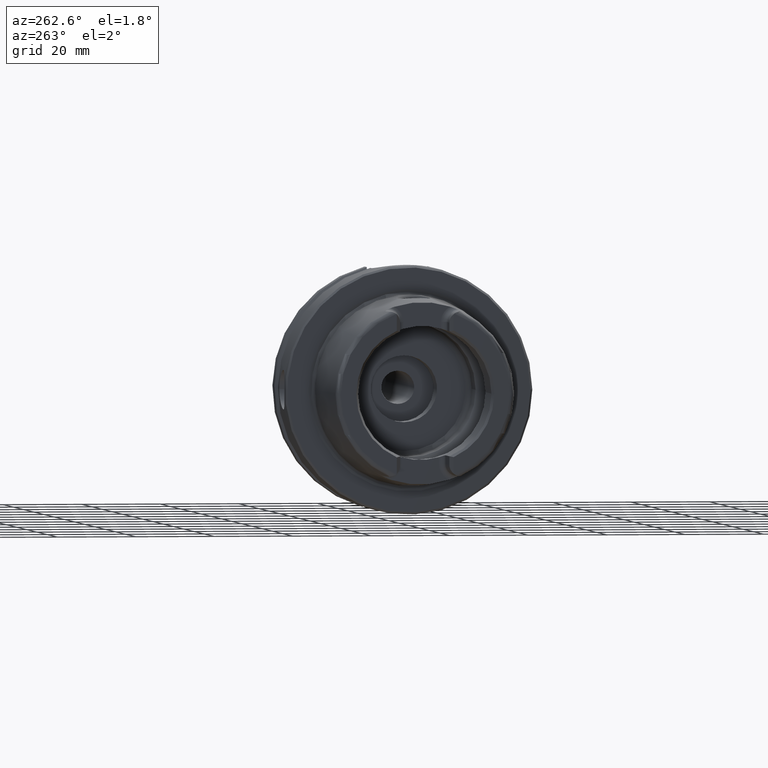
[diagram: clean part render]
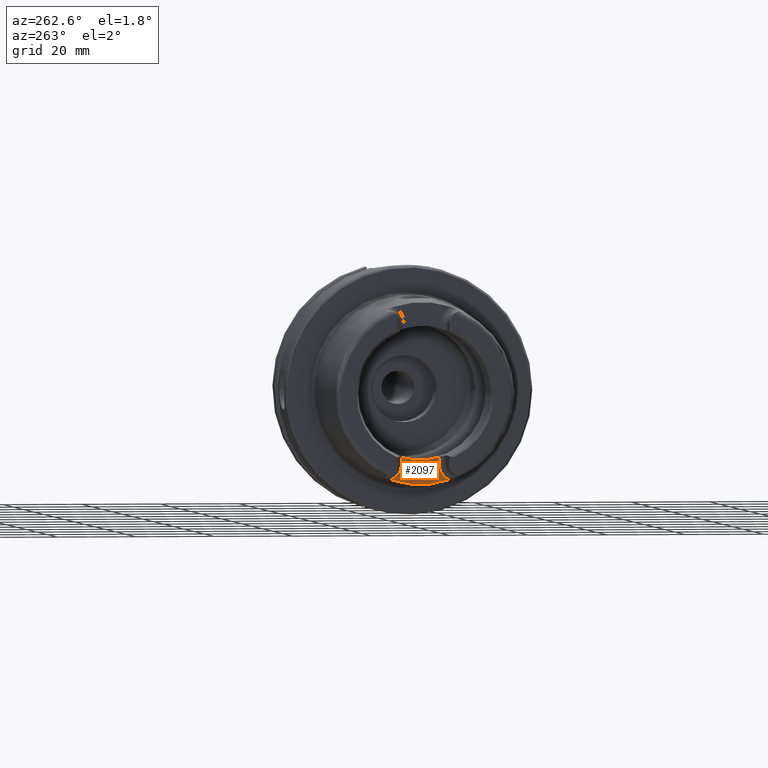
[diagram: same view with one face highlighted and labeled with its STEP entity id]
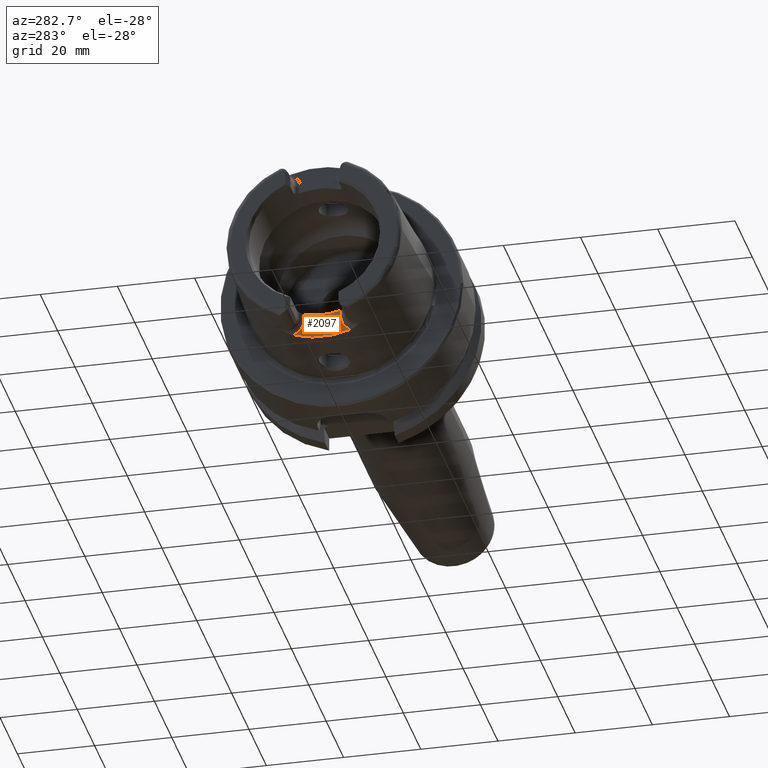
[diagram: same view with one face highlighted and labeled with its STEP entity id]
A machine part, auxiliary view. The second image highlights one B-rep face of the part: STEP entity #2097.
A second angle (auxiliary view) of the same face is appended — the face is thin or edge-on in the first view.
In plain terms, the highlighted planar face has unit normal (-1, 0, 0).
Its self-contained STEP definition (entity closure, byte-faithful):
#134=PLANE('',#2341);
#304=FACE_OUTER_BOUND('',#434,.T.);
#434=EDGE_LOOP('',(#1841,#1842,#1843,#1844,#1845,#1846));
#566=LINE('',#4398,#676);
#568=LINE('',#4407,#678);
#676=VECTOR('',#2882,10.);
#678=VECTOR('',#2894,10.);
#727=CIRCLE('',#2230,23.2184268537074);
#779=CIRCLE('',#2336,4.38);
#781=CIRCLE('',#2342,17.);
#782=CIRCLE('',#2343,4.38);
#900=VERTEX_POINT('',#3493);
#901=VERTEX_POINT('',#3504);
#1002=VERTEX_POINT('',#4383);
#1003=VERTEX_POINT('',#4387);
#1004=VERTEX_POINT('',#4404);
#1005=VERTEX_POINT('',#4406);
#1132=EDGE_CURVE('',#900,#901,#727,.T.);
#1294=EDGE_CURVE('',#1002,#900,#779,.T.);
#1296=EDGE_CURVE('',#1003,#1002,#566,.T.);
#1299=EDGE_CURVE('',#1004,#1003,#781,.T.);
#1300=EDGE_CURVE('',#1005,#1004,#568,.T.);
#1301=EDGE_CURVE('',#901,#1005,#782,.T.);
#1841=ORIENTED_EDGE('',*,*,#1294,.F.);
#1842=ORIENTED_EDGE('',*,*,#1296,.F.);
#1843=ORIENTED_EDGE('',*,*,#1299,.F.);
#1844=ORIENTED_EDGE('',*,*,#1300,.F.);
#1845=ORIENTED_EDGE('',*,*,#1301,.F.);
#1846=ORIENTED_EDGE('',*,*,#1132,.F.);
#2097=ADVANCED_FACE('',(#304),#134,.T.);
#2230=AXIS2_PLACEMENT_3D('',#3505,#2612,#2613);
#2336=AXIS2_PLACEMENT_3D('',#4385,#2878,#2879);
#2341=AXIS2_PLACEMENT_3D('',#4403,#2890,#2891);
#2342=AXIS2_PLACEMENT_3D('',#4405,#2892,#2893);
#2343=AXIS2_PLACEMENT_3D('',#4408,#2895,#2896);
#2612=DIRECTION('center_axis',(1.,0.,0.));
#2613=DIRECTION('ref_axis',(0.,1.,0.));
#2878=DIRECTION('center_axis',(-1.,0.,0.));
#2879=DIRECTION('ref_axis',(0.,0.522806483831831,-0.852451394780604));
#2882=DIRECTION('',(0.,0.,-1.));
#2890=DIRECTION('center_axis',(-1.,0.,0.));
#2891=DIRECTION('ref_axis',(0.,0.,1.));
#2892=DIRECTION('center_axis',(-1.,0.,0.));
#2893=DIRECTION('ref_axis',(0.,1.,0.));
#2894=DIRECTION('',(0.,0.,1.));
#2895=DIRECTION('center_axis',(-1.,0.,0.));
#2896=DIRECTION('ref_axis',(0.,-0.522806483831831,-0.852451394780604));
#3493=CARTESIAN_POINT('',(-22.,-7.4031250016059,-22.0065691504051));
#3504=CARTESIAN_POINT('',(-22.,7.4031250016059,-22.0065691504051));
#3505=CARTESIAN_POINT('Origin',(-22.,0.,0.));
#4383=CARTESIAN_POINT('',(-22.,-4.77,-17.99));
#4385=CARTESIAN_POINT('Origin',(-22.,-9.15,-17.99));
#4387=CARTESIAN_POINT('',(-22.,-4.77,-16.3170800083839));
#4398=CARTESIAN_POINT('',(-22.,-4.77,-17.8001077154309));
#4403=CARTESIAN_POINT('Origin',(-22.,0.,-17.6102154308617));
#4404=CARTESIAN_POINT('',(-22.,4.77,-16.3170800083839));
#4405=CARTESIAN_POINT('Origin',(-22.,0.,0.));
#4406=CARTESIAN_POINT('',(-22.,4.77,-17.99));
#4407=CARTESIAN_POINT('',(-22.,4.77,-14.3051077154309));
#4408=CARTESIAN_POINT('Origin',(-22.,9.15,-17.99));